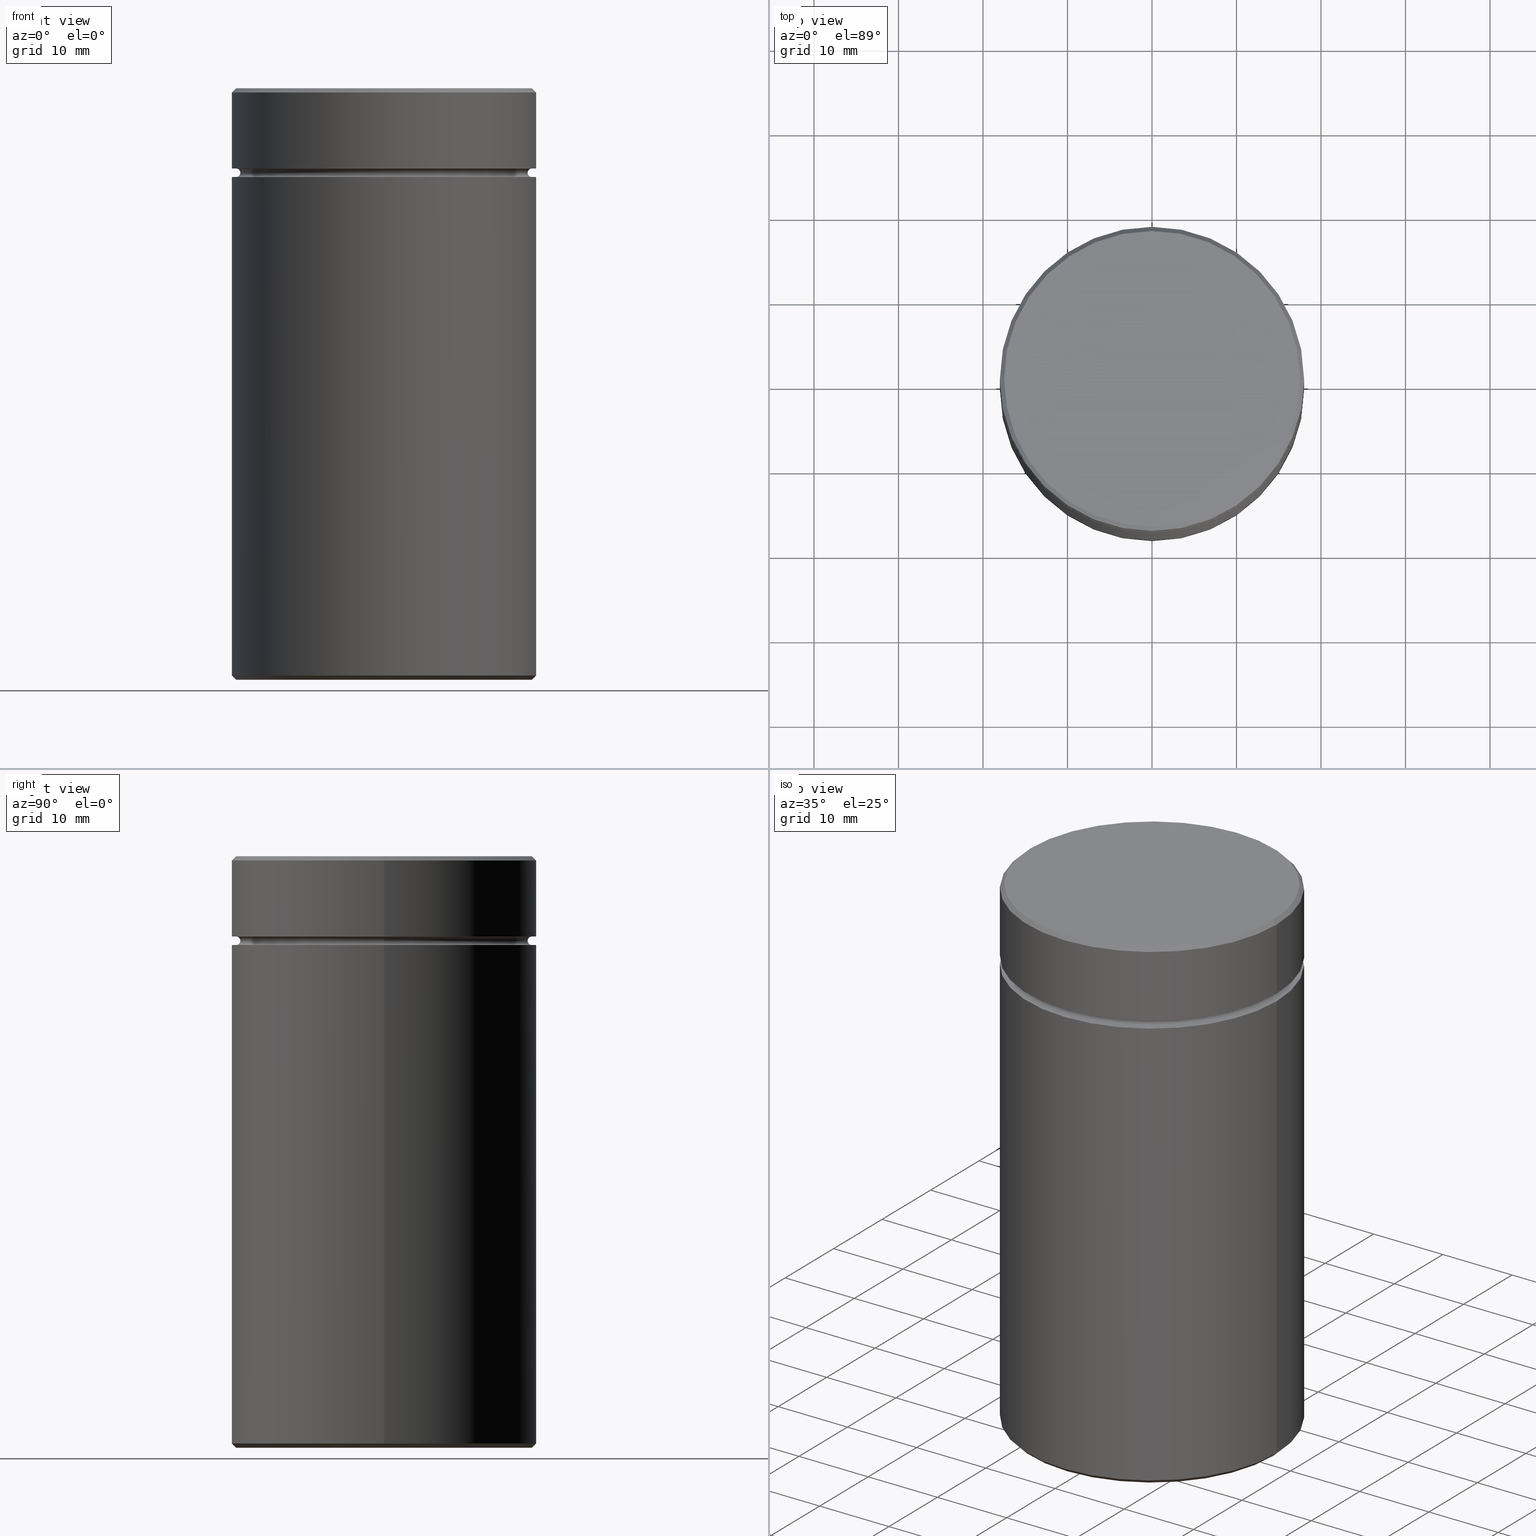
[diagram: canonical four-view strip — front | top / right | iso, engineering-drawing reading convention]
A machine part, canonical four-view strip (front | top / right | iso — engineering-drawing reading convention). The complete STEP part file that produces these views, byte-faithful:
ISO-10303-21;
HEADER;
FILE_DESCRIPTION (( 'STEP AP203' ),
    '1' );
FILE_NAME ('8669.STEP',
    '2024-01-08T12:16:21',
    ( '' ),
    ( '' ),
    'SwSTEP 2.0',
    'SolidWorks 2019',
    '' );
FILE_SCHEMA (( 'CONFIG_CONTROL_DESIGN' ));
ENDSEC;

DATA;
#1 = ORIENTED_EDGE ( 'NONE', *, *, #314, .T. ) ;
#2 = CARTESIAN_POINT ( 'NONE',  ( 17.49999999999999645, 0.000000000000000000, -10.50000000000000178 ) ) ;
#3 = AXIS2_PLACEMENT_3D ( 'NONE', #369, #31, #361 ) ;
#4 = DIRECTION ( 'NONE',  ( -1.000000000000000000, 0.000000000000000000, 0.000000000000000000 ) ) ;
#5 = AXIS2_PLACEMENT_3D ( 'NONE', #87, #166, #514 ) ;
#6 = LINE ( 'NONE', #84, #490 ) ;
#7 = LOCAL_TIME ( 13, 16, 21.00000000000000000, #8 ) ;
#8 = COORDINATED_UNIVERSAL_TIME_OFFSET ( 1, 0, .AHEAD. ) ;
#9 = CC_DESIGN_PERSON_AND_ORGANIZATION_ASSIGNMENT ( #193, #337, ( #241 ) ) ;
#10 = ORIENTED_EDGE ( 'NONE', *, *, #259, .T. ) ;
#11 = AXIS2_PLACEMENT_3D ( 'NONE', #305, #148, #180 ) ;
#12 = CARTESIAN_POINT ( 'NONE',  ( -18.00000000000000000, 2.204364238465235428E-15, -0.5000000000000177636 ) ) ;
#13 = DIRECTION ( 'NONE',  ( 0.000000000000000000, 0.000000000000000000, -1.000000000000000000 ) ) ;
#14 = EDGE_LOOP ( 'NONE', ( #394, #536, #189, #128 ) ) ;
#15 = CIRCLE ( 'NONE', #352, 18.00000000000000000 ) ;
#16 = CARTESIAN_POINT ( 'NONE',  ( 12.00000000000000178, 1.469576158976824144E-15, -24.00000000000000711 ) ) ;
#17 = CARTESIAN_POINT ( 'NONE',  ( -18.00000000000000000, 2.204364238465235428E-15, -10.50000000000000000 ) ) ;
#18 = VERTEX_POINT ( 'NONE', #496 ) ;
#19 = DIRECTION ( 'NONE',  ( 1.000000000000000000, 0.000000000000000000, 0.000000000000000000 ) ) ;
#20 = AXIS2_PLACEMENT_3D ( 'NONE', #80, #246, #157 ) ;
#21 = AXIS2_PLACEMENT_3D ( 'NONE', #46, #102, #400 ) ;
#22 = EDGE_CURVE ( 'NONE', #541, #476, #62, .T. ) ;
#23 = CARTESIAN_POINT ( 'NONE',  ( -12.00000000000000178, 0.000000000000000000, -70.00000000000000000 ) ) ;
#24 = FACE_OUTER_BOUND ( 'NONE', #179, .T. ) ;
#25 = ORIENTED_EDGE ( 'NONE', *, *, #388, .T. ) ;
#26 = ORIENTED_EDGE ( 'NONE', *, *, #227, .F. ) ;
#27 = PERSON_AND_ORGANIZATION_ROLE ( 'classification_officer' ) ;
#28 = APPROVAL_ROLE ( '' ) ;
#29 = EDGE_LOOP ( 'NONE', ( #529, #316, #45, #167 ) ) ;
#30 = VECTOR ( 'NONE', #158, 1000.000000000000000 ) ;
#31 = DIRECTION ( 'NONE',  ( 0.000000000000000000, -0.000000000000000000, 1.000000000000000000 ) ) ;
#32 = PERSON_AND_ORGANIZATION ( #402, #146 ) ;
#33 = APPLICATION_PROTOCOL_DEFINITION ( 'international standard', 'config_control_design', 1994, #313 ) ;
#34 = CARTESIAN_POINT ( 'NONE',  ( 0.000000000000000000, 0.000000000000000000, 0.000000000000000000 ) ) ;
#35 = CONICAL_SURFACE ( 'NONE', #509, 18.00000000000000000, 0.7853981633974587151 ) ;
#36 = DIRECTION ( 'NONE',  ( 0.000000000000000000, 0.000000000000000000, -1.000000000000000000 ) ) ;
#37 = CARTESIAN_POINT ( 'NONE',  ( 0.000000000000000000, 0.000000000000000000, -9.500000000000000000 ) ) ;
#38 = DIRECTION ( 'NONE',  ( -0.000000000000000000, -0.000000000000000000, -1.000000000000000000 ) ) ;
#39 = CIRCLE ( 'NONE', #181, 12.00000000000000178 ) ;
#40 = DIRECTION ( 'NONE',  ( -0.000000000000000000, -0.000000000000000000, 1.000000000000000000 ) ) ;
#41 = ADVANCED_FACE ( 'NONE', ( #342 ), #459, .F. ) ;
#42 = CARTESIAN_POINT ( 'NONE',  ( 0.000000000000000000, 0.000000000000000000, -9.500000000000000000 ) ) ;
#43 = PRODUCT ( '8669', '8669', '', ( #120 ) ) ;
#44 = CARTESIAN_POINT ( 'NONE',  ( -17.49999999999999645, 0.000000000000000000, -9.499999999999998224 ) ) ;
#45 = ORIENTED_EDGE ( 'NONE', *, *, #407, .T. ) ;
#46 = CARTESIAN_POINT ( 'NONE',  ( -17.49999999999999645, 0.000000000000000000, -9.999999999999998224 ) ) ;
#47 = FACE_OUTER_BOUND ( 'NONE', #14, .T. ) ;
#48 = CARTESIAN_POINT ( 'NONE',  ( 0.000000000000000000, 0.000000000000000000, 0.000000000000000000 ) ) ;
#49 = EDGE_LOOP ( 'NONE', ( #324, #404, #240, #439 ) ) ;
#50 = DIRECTION ( 'NONE',  ( -0.000000000000000000, -0.000000000000000000, 1.000000000000000000 ) ) ;
#51 = VECTOR ( 'NONE', #285, 1000.000000000000000 ) ;
#52 = CARTESIAN_POINT ( 'NONE',  ( 0.000000000000000000, 0.000000000000000000, -0.5000000000000177636 ) ) ;
#53 = CONICAL_SURFACE ( 'NONE', #486, 18.00000000000000000, 0.7853981633974587151 ) ;
#54 = SECURITY_CLASSIFICATION ( '', '', #505 ) ;
#55 = ORIENTED_EDGE ( 'NONE', *, *, #138, .T. ) ;
#56 = EDGE_LOOP ( 'NONE', ( #435, #273, #495, #145 ) ) ;
#57 = ADVANCED_FACE ( 'NONE', ( #355 ), #315, .F. ) ;
#58 = CIRCLE ( 'NONE', #460, 17.49999999999999645 ) ;
#59 = DIRECTION ( 'NONE',  ( 1.000000000000000000, 0.000000000000000000, 0.000000000000000000 ) ) ;
#60 = DIRECTION ( 'NONE',  ( -0.000000000000000000, -0.000000000000000000, 1.000000000000000000 ) ) ;
#61 = EDGE_CURVE ( 'NONE', #233, #270, #265, .T. ) ;
#62 = LINE ( 'NONE', #105, #569 ) ;
#63 = CIRCLE ( 'NONE', #473, 12.00000000000000178 ) ;
#64 = AXIS2_PLACEMENT_3D ( 'NONE', #239, #284, #418 ) ;
#65 = ORIENTED_EDGE ( 'NONE', *, *, #269, .T. ) ;
#66 = CC_DESIGN_PERSON_AND_ORGANIZATION_ASSIGNMENT ( #487, #184, ( #544 ) ) ;
#67 = ORIENTED_EDGE ( 'NONE', *, *, #314, .F. ) ;
#68 = ORIENTED_EDGE ( 'NONE', *, *, #457, .F. ) ;
#69 = CARTESIAN_POINT ( 'NONE',  ( 0.000000000000000000, 0.000000000000000000, -24.00000000000000711 ) ) ;
#70 = PERSON_AND_ORGANIZATION_ROLE ( 'design_owner' ) ;
#71 = DIRECTION ( 'NONE',  ( -0.000000000000000000, -0.000000000000000000, 1.000000000000000000 ) ) ;
#72 = FACE_BOUND ( 'NONE', #137, .T. ) ;
#73 = CALENDAR_DATE ( 2024, 8, 1 ) ;
#74 = EDGE_CURVE ( 'NONE', #229, #442, #539, .T. ) ;
#75 = TOROIDAL_SURFACE ( 'NONE', #535, 17.49999999999999645, 0.5000000000000000000 ) ;
#76 = DIRECTION ( 'NONE',  ( -1.000000000000000000, 0.000000000000000000, 0.000000000000000000 ) ) ;
#77 = FACE_OUTER_BOUND ( 'NONE', #357, .T. ) ;
#78 = EDGE_LOOP ( 'NONE', ( #456, #155, #142, #188 ) ) ;
#79 = CC_DESIGN_PERSON_AND_ORGANIZATION_ASSIGNMENT ( #278, #27, ( #54 ) ) ;
#80 = CARTESIAN_POINT ( 'NONE',  ( 0.000000000000000000, 0.000000000000000000, 0.000000000000000000 ) ) ;
#81 = ADVANCED_FACE ( 'NONE', ( #47 ), #35, .T. ) ;
#82 = CYLINDRICAL_SURFACE ( 'NONE', #201, 12.00000000000000178 ) ;
#83 = AXIS2_PLACEMENT_3D ( 'NONE', #443, #275, #312 ) ;
#84 = CARTESIAN_POINT ( 'NONE',  ( -18.00000000000000000, 2.204364238465235428E-15, 0.000000000000000000 ) ) ;
#85 = DIRECTION ( 'NONE',  ( -0.000000000000000000, -0.000000000000000000, 1.000000000000000000 ) ) ;
#86 = DIRECTION ( 'NONE',  ( -1.224646799147353207E-16, 1.000000000000000000, 0.000000000000000000 ) ) ;
#87 = CARTESIAN_POINT ( 'NONE',  ( 0.000000000000000000, 0.000000000000000000, -10.50000000000000178 ) ) ;
#88 = APPLICATION_CONTEXT ( 'configuration controlled 3d designs of mechanical parts and assemblies' ) ;
#89 = ORIENTED_EDGE ( 'NONE', *, *, #61, .T. ) ;
#90 = DIRECTION ( 'NONE',  ( 1.224646799147353207E-16, 1.000000000000000000, 0.000000000000000000 ) ) ;
#91 = AXIS2_PLACEMENT_3D ( 'NONE', #434, #13, #127 ) ;
#92 = TOROIDAL_SURFACE ( 'NONE', #131, 17.49999999999999645, 0.5000000000000000000 ) ;
#93 = ORIENTED_EDGE ( 'NONE', *, *, #547, .F. ) ;
#94 = EDGE_LOOP ( 'NONE', ( #372, #501, #497, #503 ) ) ;
#95 = VERTEX_POINT ( 'NONE', #429 ) ;
#96 = VERTEX_POINT ( 'NONE', #2 ) ;
#97 = ADVANCED_FACE ( 'NONE', ( #238 ), #430, .F. ) ;
#98 = EDGE_CURVE ( 'NONE', #442, #508, #564, .T. ) ;
#99 = CIRCLE ( 'NONE', #319, 18.00000000000000000 ) ;
#100 = AXIS2_PLACEMENT_3D ( 'NONE', #123, #568, #461 ) ;
#101 = FACE_OUTER_BOUND ( 'NONE', #219, .T. ) ;
#102 = DIRECTION ( 'NONE',  ( -0.000000000000000000, -1.000000000000000000, -0.000000000000000000 ) ) ;
#103 = EDGE_CURVE ( 'NONE', #442, #229, #170, .T. ) ;
#104 = PLANE ( 'NONE',  #387 ) ;
#105 = CARTESIAN_POINT ( 'NONE',  ( 12.00000000000000178, 1.469576158976824144E-15, -24.00000000000000711 ) ) ;
#106 = VERTEX_POINT ( 'NONE', #17 ) ;
#107 = AXIS2_PLACEMENT_3D ( 'NONE', #521, #297, #291 ) ;
#108 = LOCAL_TIME ( 13, 16, 21.00000000000000000, #362 ) ;
#109 = APPROVAL_STATUS ( 'not_yet_approved' ) ;
#110 = CARTESIAN_POINT ( 'NONE',  ( 0.000000000000000000, 0.000000000000000000, -69.50000000000001421 ) ) ;
#111 = EDGE_CURVE ( 'NONE', #351, #384, #244, .T. ) ;
#112 = FACE_OUTER_BOUND ( 'NONE', #49, .T. ) ;
#113 = DIRECTION ( 'NONE',  ( -0.000000000000000000, -0.000000000000000000, 1.000000000000000000 ) ) ;
#114 = CARTESIAN_POINT ( 'NONE',  ( -12.00000000000000178, 0.000000000000000000, -24.00000000000000711 ) ) ;
#115 = EDGE_CURVE ( 'NONE', #175, #18, #253, .T. ) ;
#116 = CARTESIAN_POINT ( 'NONE',  ( 0.000000000000000000, 0.000000000000000000, -9.999999999999998224 ) ) ;
#117 = DIRECTION ( 'NONE',  ( 1.000000000000000000, 0.000000000000000000, 0.000000000000000000 ) ) ;
#118 = DIRECTION ( 'NONE',  ( -0.000000000000000000, -0.000000000000000000, 1.000000000000000000 ) ) ;
#119 = CYLINDRICAL_SURFACE ( 'NONE', #107, 18.00000000000000000 ) ;
#120 = MECHANICAL_CONTEXT ( 'NONE', #313, 'mechanical' ) ;
#121 = VERTEX_POINT ( 'NONE', #467 ) ;
#122 = AXIS2_PLACEMENT_3D ( 'NONE', #220, #493, #448 ) ;
#123 = CARTESIAN_POINT ( 'NONE',  ( 0.000000000000000000, 0.000000000000000000, 0.000000000000000000 ) ) ;
#124 = ORIENTED_EDGE ( 'NONE', *, *, #527, .T. ) ;
#125 = AXIS2_PLACEMENT_3D ( 'NONE', #409, #416, #161 ) ;
#126 = ORIENTED_EDGE ( 'NONE', *, *, #115, .T. ) ;
#127 = DIRECTION ( 'NONE',  ( -1.000000000000000000, 0.000000000000000000, 0.000000000000000000 ) ) ;
#128 = ORIENTED_EDGE ( 'NONE', *, *, #259, .F. ) ;
#129 = DIRECTION ( 'NONE',  ( -0.000000000000000000, -0.000000000000000000, 1.000000000000000000 ) ) ;
#130 = DIRECTION ( 'NONE',  ( -0.7071067811865425767, 0.000000000000000000, -0.7071067811865525687 ) ) ;
#131 = AXIS2_PLACEMENT_3D ( 'NONE', #398, #71, #366 ) ;
#132 = EDGE_LOOP ( 'NONE', ( #498, #303, #359, #458 ) ) ;
#133 = ORIENTED_EDGE ( 'NONE', *, *, #463, .T. ) ;
#134 = VERTEX_POINT ( 'NONE', #373 ) ;
#135 = AXIS2_PLACEMENT_3D ( 'NONE', #420, #516, #117 ) ;
#136 = EDGE_CURVE ( 'NONE', #391, #134, #15, .T. ) ;
#137 = EDGE_LOOP ( 'NONE', ( #321, #25 ) ) ;
#138 = EDGE_CURVE ( 'NONE', #106, #18, #99, .T. ) ;
#139 = EDGE_LOOP ( 'NONE', ( #282, #55 ) ) ;
#140 = ORIENTED_EDGE ( 'NONE', *, *, #217, .F. ) ;
#141 = PERSON_AND_ORGANIZATION ( #402, #146 ) ;
#142 = ORIENTED_EDGE ( 'NONE', *, *, #250, .T. ) ;
#143 = CARTESIAN_POINT ( 'NONE',  ( 0.000000000000000000, 0.000000000000000000, -10.00000000000000178 ) ) ;
#144 = LOCAL_TIME ( 13, 16, 21.00000000000000000, #555 ) ;
#145 = ORIENTED_EDGE ( 'NONE', *, *, #431, .T. ) ;
#146 = ORGANIZATION ( 'NEUR�EN�', 'NEUR�EN�', '' ) ;
#147 = EDGE_CURVE ( 'NONE', #270, #233, #164, .T. ) ;
#148 = DIRECTION ( 'NONE',  ( 0.000000000000000000, 0.000000000000000000, -1.000000000000000000 ) ) ;
#149 = CARTESIAN_POINT ( 'NONE',  ( 0.000000000000000000, 0.000000000000000000, -9.999999999999998224 ) ) ;
#150 = ORIENTED_EDGE ( 'NONE', *, *, #22, .T. ) ;
#151 = DIRECTION ( 'NONE',  ( 0.7071067811865549002, 0.000000000000000000, 0.7071067811865401342 ) ) ;
#152 = FACE_OUTER_BOUND ( 'NONE', #534, .T. ) ;
#153 = ADVANCED_FACE ( 'NONE', ( #101 ), #104, .T. ) ;
#154 = CARTESIAN_POINT ( 'NONE',  ( 0.000000000000000000, 0.000000000000000000, -10.50000000000000178 ) ) ;
#155 = ORIENTED_EDGE ( 'NONE', *, *, #61, .F. ) ;
#156 = AXIS2_PLACEMENT_3D ( 'NONE', #218, #86, #304 ) ;
#157 = DIRECTION ( 'NONE',  ( -1.000000000000000000, 0.000000000000000000, 0.000000000000000000 ) ) ;
#158 = DIRECTION ( 'NONE',  ( -0.000000000000000000, -0.000000000000000000, 1.000000000000000000 ) ) ;
#159 = VERTEX_POINT ( 'NONE', #23 ) ;
#160 = CARTESIAN_POINT ( 'NONE',  ( 0.000000000000000000, 0.000000000000000000, -9.499999999999998224 ) ) ;
#161 = DIRECTION ( 'NONE',  ( -1.000000000000000000, 0.000000000000000000, 0.000000000000000000 ) ) ;
#162 = ORIENTED_EDGE ( 'NONE', *, *, #547, .T. ) ;
#163 = ORIENTED_EDGE ( 'NONE', *, *, #368, .F. ) ;
#164 = CIRCLE ( 'NONE', #83, 16.99999999999999645 ) ;
#165 = EDGE_CURVE ( 'NONE', #159, #476, #63, .T. ) ;
#166 = DIRECTION ( 'NONE',  ( 0.000000000000000000, 0.000000000000000000, -1.000000000000000000 ) ) ;
#167 = ORIENTED_EDGE ( 'NONE', *, *, #165, .T. ) ;
#168 = MANIFOLD_SOLID_BREP ( 'Zaoblit1', #447 ) ;
#169 = FACE_OUTER_BOUND ( 'NONE', #78, .T. ) ;
#170 = CIRCLE ( 'NONE', #341, 17.49999999999998934 ) ;
#171 = CARTESIAN_POINT ( 'NONE',  ( 16.99999999999999645, 0.000000000000000000, -10.00000000000000178 ) ) ;
#172 = EDGE_CURVE ( 'NONE', #175, #183, #221, .T. ) ;
#173 = EDGE_LOOP ( 'NONE', ( #124, #162 ) ) ;
#174 = AXIS2_PLACEMENT_3D ( 'NONE', #293, #255, #428 ) ;
#175 = VERTEX_POINT ( 'NONE', #374 ) ;
#176 = DIRECTION ( 'NONE',  ( 0.000000000000000000, 0.000000000000000000, -1.000000000000000000 ) ) ;
#177 = ORIENTED_EDGE ( 'NONE', *, *, #74, .F. ) ;
#178 = CARTESIAN_POINT ( 'NONE',  ( 0.000000000000000000, 0.000000000000000000, -69.50000000000001421 ) ) ;
#179 = EDGE_LOOP ( 'NONE', ( #537, #506, #276, #552 ) ) ;
#180 = DIRECTION ( 'NONE',  ( -1.000000000000000000, 0.000000000000000000, 0.000000000000000000 ) ) ;
#181 = AXIS2_PLACEMENT_3D ( 'NONE', #464, #286, #423 ) ;
#182 = CARTESIAN_POINT ( 'NONE',  ( 0.000000000000000000, 0.000000000000000000, 0.000000000000000000 ) ) ;
#183 = VERTEX_POINT ( 'NONE', #277 ) ;
#184 = PERSON_AND_ORGANIZATION_ROLE ( 'creator' ) ;
#185 = APPROVAL_ROLE ( '' ) ;
#186 = DATE_AND_TIME ( #73, #108 ) ;
#187 = PERSON_AND_ORGANIZATION ( #402, #146 ) ;
#188 = ORIENTED_EDGE ( 'NONE', *, *, #388, .F. ) ;
#189 = ORIENTED_EDGE ( 'NONE', *, *, #339, .T. ) ;
#190 = DIRECTION ( 'NONE',  ( -1.000000000000000000, 0.000000000000000000, 0.000000000000000000 ) ) ;
#191 = ADVANCED_FACE ( 'NONE', ( #72, #471 ), #195, .T. ) ;
#192 = LINE ( 'NONE', #518, #565 ) ;
#193 = PERSON_AND_ORGANIZATION ( #402, #146 ) ;
#194 = CARTESIAN_POINT ( 'NONE',  ( 0.000000000000000000, 0.000000000000000000, -24.00000000000000711 ) ) ;
#195 = PLANE ( 'NONE',  #3 ) ;
#196 = DATE_AND_TIME ( #356, #301 ) ;
#197 = UNCERTAINTY_MEASURE_WITH_UNIT (LENGTH_MEASURE( 1.000000000000000082E-05 ), #494, 'distance_accuracy_value', 'NONE');
#198 = CALENDAR_DATE ( 2024, 8, 1 ) ;
#199 = ADVANCED_FACE ( 'NONE', ( #326, #243 ), #364, .T. ) ;
#200 = CARTESIAN_POINT ( 'NONE',  ( 0.000000000000000000, 0.000000000000000000, 0.000000000000000000 ) ) ;
#201 = AXIS2_PLACEMENT_3D ( 'NONE', #519, #249, #4 ) ;
#202 = DATE_AND_TIME ( #545, #144 ) ;
#203 = DIRECTION ( 'NONE',  ( 1.000000000000000000, 0.000000000000000000, 0.000000000000000000 ) ) ;
#204 = ORIENTED_EDGE ( 'NONE', *, *, #502, .T. ) ;
#205 = DIRECTION ( 'NONE',  ( -1.000000000000000000, 0.000000000000000000, -0.000000000000000000 ) ) ;
#206 = CALENDAR_DATE ( 2024, 8, 1 ) ;
#207 = DIRECTION ( 'NONE',  ( 0.000000000000000000, 0.000000000000000000, -1.000000000000000000 ) ) ;
#208 = DIRECTION ( 'NONE',  ( -0.000000000000000000, -0.000000000000000000, 1.000000000000000000 ) ) ;
#209 = EDGE_LOOP ( 'NONE', ( #177, #65, #438, #347 ) ) ;
#210 = ADVANCED_FACE ( 'NONE', ( #520 ), #512, .T. ) ;
#211 = AXIS2_PLACEMENT_3D ( 'NONE', #396, #118, #530 ) ;
#212 = FACE_BOUND ( 'NONE', #549, .T. ) ;
#213 = CYLINDRICAL_SURFACE ( 'NONE', #397, 18.00000000000000000 ) ;
#214 = CYLINDRICAL_SURFACE ( 'NONE', #100, 18.00000000000000000 ) ;
#215 = DIRECTION ( 'NONE',  ( 1.000000000000000000, 0.000000000000000000, 0.000000000000000000 ) ) ;
#216 = AXIS2_PLACEMENT_3D ( 'NONE', #160, #336, #190 ) ;
#217 = EDGE_CURVE ( 'NONE', #541, #257, #370, .T. ) ;
#218 = CARTESIAN_POINT ( 'NONE',  ( 17.49999999999999645, 2.143131898507867854E-15, -9.999999999999998224 ) ) ;
#219 = EDGE_LOOP ( 'NONE', ( #133, #298 ) ) ;
#220 = CARTESIAN_POINT ( 'NONE',  ( 0.000000000000000000, 0.000000000000000000, -24.00000000000000711 ) ) ;
#221 = CIRCLE ( 'NONE', #489, 18.00000000000000000 ) ;
#222 = CIRCLE ( 'NONE', #21, 0.5000000000000004441 ) ;
#223 = CARTESIAN_POINT ( 'NONE',  ( -12.00000000000000178, 0.000000000000000000, -24.00000000000000711 ) ) ;
#224 = CARTESIAN_POINT ( 'NONE',  ( 0.000000000000000000, 0.000000000000000000, -69.50000000000001421 ) ) ;
#225 = EDGE_CURVE ( 'NONE', #384, #351, #327, .T. ) ;
#226 = CARTESIAN_POINT ( 'NONE',  ( 17.49999999999999645, 0.000000000000000000, -10.00000000000000178 ) ) ;
#227 = EDGE_CURVE ( 'NONE', #233, #95, #395, .T. ) ;
#228 = AXIS2_PLACEMENT_3D ( 'NONE', #116, #421, #345 ) ;
#229 = VERTEX_POINT ( 'NONE', #258 ) ;
#230 = AXIS2_PLACEMENT_3D ( 'NONE', #52, #207, #251 ) ;
#231 = PERSON_AND_ORGANIZATION_ROLE ( 'design_supplier' ) ;
#232 = EDGE_CURVE ( 'NONE', #508, #484, #485, .T. ) ;
#233 = VERTEX_POINT ( 'NONE', #171 ) ;
#234 = FACE_OUTER_BOUND ( 'NONE', #56, .T. ) ;
#235 = APPROVAL_DATE_TIME ( #196, #317 ) ;
#236 = AXIS2_PLACEMENT_3D ( 'NONE', #226, #254, #176 ) ;
#237 = CC_DESIGN_APPROVAL ( #317, ( #54 ) ) ;
#238 = FACE_OUTER_BOUND ( 'NONE', #132, .T. ) ;
#239 = CARTESIAN_POINT ( 'NONE',  ( 0.000000000000000000, 0.000000000000000000, -0.5000000000000177636 ) ) ;
#240 = ORIENTED_EDGE ( 'NONE', *, *, #98, .T. ) ;
#241 = PRODUCT_DEFINITION ( 'NEZN�M�', '', #544, #455 ) ;
#242 = DIRECTION ( 'NONE',  ( -1.000000000000000000, 0.000000000000000000, 0.000000000000000000 ) ) ;
#243 = FACE_OUTER_BOUND ( 'NONE', #307, .T. ) ;
#244 = CIRCLE ( 'NONE', #11, 17.50000000000000000 ) ;
#245 = DIRECTION ( 'NONE',  ( 1.000000000000000000, 0.000000000000000000, 0.000000000000000000 ) ) ;
#246 = DIRECTION ( 'NONE',  ( 0.000000000000000000, 0.000000000000000000, -1.000000000000000000 ) ) ;
#247 =( GEOMETRIC_REPRESENTATION_CONTEXT ( 3 ) GLOBAL_UNCERTAINTY_ASSIGNED_CONTEXT ( ( #197 ) ) GLOBAL_UNIT_ASSIGNED_CONTEXT ( ( #494, #444, #412 ) ) REPRESENTATION_CONTEXT ( 'NONE', 'WORKASPACE' ) );
#248 = LINE ( 'NONE', #510, #320 ) ;
#249 = DIRECTION ( 'NONE',  ( -0.000000000000000000, -0.000000000000000000, -1.000000000000000000 ) ) ;
#250 = EDGE_CURVE ( 'NONE', #233, #96, #360, .T. ) ;
#251 = DIRECTION ( 'NONE',  ( 1.000000000000000000, 0.000000000000000000, 0.000000000000000000 ) ) ;
#252 = LINE ( 'NONE', #114, #382 ) ;
#253 = LINE ( 'NONE', #413, #51 ) ;
#254 = DIRECTION ( 'NONE',  ( 0.000000000000000000, -1.000000000000000000, 0.000000000000000000 ) ) ;
#255 = DIRECTION ( 'NONE',  ( -0.000000000000000000, -0.000000000000000000, 1.000000000000000000 ) ) ;
#256 = DATE_TIME_ROLE ( 'creation_date' ) ;
#257 = VERTEX_POINT ( 'NONE', #223 ) ;
#258 = CARTESIAN_POINT ( 'NONE',  ( 17.49999999999998934, 2.173748068486550852E-15, 0.000000000000000000 ) ) ;
#259 = EDGE_CURVE ( 'NONE', #183, #175, #267, .T. ) ;
#260 = AXIS2_PLACEMENT_3D ( 'NONE', #335, #290, #406 ) ;
#261 = VECTOR ( 'NONE', #151, 1000.000000000000000 ) ;
#262 = ORIENTED_EDGE ( 'NONE', *, *, #559, .T. ) ;
#263 = CARTESIAN_POINT ( 'NONE',  ( 0.000000000000000000, 0.000000000000000000, 0.000000000000000000 ) ) ;
#264 = ORIENTED_EDGE ( 'NONE', *, *, #111, .T. ) ;
#265 = CIRCLE ( 'NONE', #211, 16.99999999999999645 ) ;
#266 = ORIENTED_EDGE ( 'NONE', *, *, #165, .F. ) ;
#267 = CIRCLE ( 'NONE', #346, 18.00000000000000000 ) ;
#268 = FACE_OUTER_BOUND ( 'NONE', #344, .T. ) ;
#269 = EDGE_CURVE ( 'NONE', #229, #484, #248, .T. ) ;
#270 = VERTEX_POINT ( 'NONE', #566 ) ;
#271 = CIRCLE ( 'NONE', #174, 17.49999999999999645 ) ;
#272 = PRODUCT_DEFINITION_SHAPE ( 'NONE', 'NONE',  #241 ) ;
#273 = ORIENTED_EDGE ( 'NONE', *, *, #353, .T. ) ;
#274 = APPROVAL ( #445, 'NEUR�EN�' ) ;
#275 = DIRECTION ( 'NONE',  ( -0.000000000000000000, -0.000000000000000000, 1.000000000000000000 ) ) ;
#276 = ORIENTED_EDGE ( 'NONE', *, *, #172, .F. ) ;
#277 = CARTESIAN_POINT ( 'NONE',  ( -18.00000000000000000, 2.204364238465235428E-15, -69.50000000000001421 ) ) ;
#278 = PERSON_AND_ORGANIZATION ( #402, #146 ) ;
#279 = AXIS2_PLACEMENT_3D ( 'NONE', #200, #113, #415 ) ;
#280 = PERSON_AND_ORGANIZATION ( #402, #146 ) ;
#281 = VECTOR ( 'NONE', #50, 1000.000000000000000 ) ;
#282 = ORIENTED_EDGE ( 'NONE', *, *, #457, .T. ) ;
#283 = CC_DESIGN_APPROVAL ( #296, ( #241 ) ) ;
#284 = DIRECTION ( 'NONE',  ( 0.000000000000000000, 0.000000000000000000, -1.000000000000000000 ) ) ;
#285 = DIRECTION ( 'NONE',  ( -0.000000000000000000, -0.000000000000000000, 1.000000000000000000 ) ) ;
#286 = DIRECTION ( 'NONE',  ( 0.000000000000000000, 0.000000000000000000, -1.000000000000000000 ) ) ;
#287 = CARTESIAN_POINT ( 'NONE',  ( 18.00000000000000000, 0.000000000000000000, -0.5000000000000177636 ) ) ;
#288 = DIRECTION ( 'NONE',  ( -0.7071067811865549002, 8.659560562355022838E-17, 0.7071067811865401342 ) ) ;
#289 = CARTESIAN_POINT ( 'NONE',  ( 0.000000000000000000, 0.000000000000000000, -10.50000000000000000 ) ) ;
#290 = DIRECTION ( 'NONE',  ( 0.000000000000000000, 0.000000000000000000, -1.000000000000000000 ) ) ;
#291 = DIRECTION ( 'NONE',  ( 1.000000000000000000, 0.000000000000000000, 0.000000000000000000 ) ) ;
#292 = AXIS2_PLACEMENT_3D ( 'NONE', #37, #379, #203 ) ;
#293 = CARTESIAN_POINT ( 'NONE',  ( 0.000000000000000000, 0.000000000000000000, -9.499999999999998224 ) ) ;
#294 = APPROVAL_PERSON_ORGANIZATION ( #280, #317, #546 ) ;
#295 = FACE_OUTER_BOUND ( 'NONE', #533, .T. ) ;
#296 = APPROVAL ( #408, 'NEUR�EN�' ) ;
#297 = DIRECTION ( 'NONE',  ( -0.000000000000000000, -0.000000000000000000, 1.000000000000000000 ) ) ;
#298 = ORIENTED_EDGE ( 'NONE', *, *, #217, .T. ) ;
#299 = ORIENTED_EDGE ( 'NONE', *, *, #138, .F. ) ;
#300 = CIRCLE ( 'NONE', #292, 18.00000000000000000 ) ;
#301 = LOCAL_TIME ( 13, 16, 21.00000000000000000, #450 ) ;
#302 = APPROVAL_DATE_TIME ( #311, #274 ) ;
#303 = ORIENTED_EDGE ( 'NONE', *, *, #227, .T. ) ;
#304 = DIRECTION ( 'NONE',  ( -1.000000000000000000, -1.224646799147349509E-16, 0.000000000000000000 ) ) ;
#305 = CARTESIAN_POINT ( 'NONE',  ( 0.000000000000000000, 0.000000000000000000, -70.00000000000000000 ) ) ;
#306 = ADVANCED_FACE ( 'NONE', ( #112 ), #454, .T. ) ;
#307 = EDGE_LOOP ( 'NONE', ( #469, #340 ) ) ;
#308 = AXIS2_PLACEMENT_3D ( 'NONE', #557, #561, #465 ) ;
#309 = AXIS2_PLACEMENT_3D ( 'NONE', #289, #40, #470 ) ;
#310 = DIRECTION ( 'NONE',  ( 0.000000000000000000, 0.000000000000000000, -1.000000000000000000 ) ) ;
#311 = DATE_AND_TIME ( #198, #7 ) ;
#312 = DIRECTION ( 'NONE',  ( 1.000000000000000000, 0.000000000000000000, 0.000000000000000000 ) ) ;
#313 = APPLICATION_CONTEXT ( 'configuration controlled 3d designs of mechanical parts and assemblies' ) ;
#314 = EDGE_CURVE ( 'NONE', #476, #159, #39, .T. ) ;
#315 = TOROIDAL_SURFACE ( 'NONE', #437, 17.49999999999999645, 0.5000000000000000000 ) ;
#316 = ORIENTED_EDGE ( 'NONE', *, *, #463, .F. ) ;
#317 = APPROVAL ( #109, 'NEUR�EN�' ) ;
#318 = CARTESIAN_POINT ( 'NONE',  ( 0.000000000000000000, 18.00000000000000000, -70.00000000000000000 ) ) ;
#319 = AXIS2_PLACEMENT_3D ( 'NONE', #390, #343, #19 ) ;
#320 = VECTOR ( 'NONE', #515, 999.9999999999998863 ) ;
#321 = ORIENTED_EDGE ( 'NONE', *, *, #368, .T. ) ;
#322 = CC_DESIGN_PERSON_AND_ORGANIZATION_ASSIGNMENT ( #187, #70, ( #43 ) ) ;
#323 = DIRECTION ( 'NONE',  ( 0.000000000000000000, 0.000000000000000000, -1.000000000000000000 ) ) ;
#324 = ORIENTED_EDGE ( 'NONE', *, *, #269, .F. ) ;
#325 = DIRECTION ( 'NONE',  ( 0.000000000000000000, 0.000000000000000000, -1.000000000000000000 ) ) ;
#326 = FACE_BOUND ( 'NONE', #173, .T. ) ;
#327 = CIRCLE ( 'NONE', #91, 17.50000000000000000 ) ;
#328 = DIRECTION ( 'NONE',  ( 1.000000000000000000, 0.000000000000000000, 0.000000000000000000 ) ) ;
#329 = CC_DESIGN_APPROVAL ( #274, ( #544 ) ) ;
#330 = COORDINATED_UNIVERSAL_TIME_OFFSET ( 1, 0, .AHEAD. ) ;
#331 = DIRECTION ( 'NONE',  ( 0.000000000000000000, 0.000000000000000000, 1.000000000000000000 ) ) ;
#332 = ORIENTED_EDGE ( 'NONE', *, *, #147, .F. ) ;
#333 = EDGE_CURVE ( 'NONE', #384, #183, #192, .T. ) ;
#334 = PLANE ( 'NONE',  #135 ) ;
#335 = CARTESIAN_POINT ( 'NONE',  ( 0.000000000000000000, 0.000000000000000000, -24.00000000000000711 ) ) ;
#336 = DIRECTION ( 'NONE',  ( -0.000000000000000000, -0.000000000000000000, 1.000000000000000000 ) ) ;
#337 = PERSON_AND_ORGANIZATION_ROLE ( 'creator' ) ;
#338 = CIRCLE ( 'NONE', #64, 18.00000000000000000 ) ;
#339 = EDGE_CURVE ( 'NONE', #351, #175, #524, .T. ) ;
#340 = ORIENTED_EDGE ( 'NONE', *, *, #353, .F. ) ;
#341 = AXIS2_PLACEMENT_3D ( 'NONE', #263, #60, #215 ) ;
#342 = FACE_OUTER_BOUND ( 'NONE', #29, .T. ) ;
#343 = DIRECTION ( 'NONE',  ( -0.000000000000000000, -0.000000000000000000, 1.000000000000000000 ) ) ;
#344 = EDGE_LOOP ( 'NONE', ( #401, #551, #68, #365 ) ) ;
#345 = DIRECTION ( 'NONE',  ( -1.000000000000000000, 0.000000000000000000, 0.000000000000000000 ) ) ;
#346 = AXIS2_PLACEMENT_3D ( 'NONE', #178, #538, #488 ) ;
#347 = ORIENTED_EDGE ( 'NONE', *, *, #98, .F. ) ;
#348 = ADVANCED_FACE ( 'NONE', ( #234 ), #213, .T. ) ;
#349 = CARTESIAN_POINT ( 'NONE',  ( 0.000000000000000000, 0.000000000000000000, -70.00000000000000000 ) ) ;
#350 = ORIENTED_EDGE ( 'NONE', *, *, #103, .T. ) ;
#351 = VERTEX_POINT ( 'NONE', #480 ) ;
#352 = AXIS2_PLACEMENT_3D ( 'NONE', #42, #129, #59 ) ;
#353 = EDGE_CURVE ( 'NONE', #134, #391, #300, .T. ) ;
#354 = DIRECTION ( 'NONE',  ( -0.000000000000000000, -0.000000000000000000, 1.000000000000000000 ) ) ;
#355 = FACE_OUTER_BOUND ( 'NONE', #522, .T. ) ;
#356 = CALENDAR_DATE ( 2024, 8, 1 ) ;
#357 = EDGE_LOOP ( 'NONE', ( #453, #10, #126, #299 ) ) ;
#358 = APPLICATION_PROTOCOL_DEFINITION ( 'international standard', 'config_control_design', 1994, #88 ) ;
#359 = ORIENTED_EDGE ( 'NONE', *, *, #527, .F. ) ;
#360 = CIRCLE ( 'NONE', #236, 0.5000000000000004441 ) ;
#361 = DIRECTION ( 'NONE',  ( 1.000000000000000000, 0.000000000000000000, 0.000000000000000000 ) ) ;
#362 = COORDINATED_UNIVERSAL_TIME_OFFSET ( 1, 0, .AHEAD. ) ;
#363 = EDGE_CURVE ( 'NONE', #134, #508, #562, .T. ) ;
#364 = PLANE ( 'NONE',  #308 ) ;
#365 = ORIENTED_EDGE ( 'NONE', *, *, #115, .F. ) ;
#366 = DIRECTION ( 'NONE',  ( 1.000000000000000000, 0.000000000000000000, 0.000000000000000000 ) ) ;
#367 = DIRECTION ( 'NONE',  ( 1.000000000000000000, 0.000000000000000000, 0.000000000000000000 ) ) ;
#368 = EDGE_CURVE ( 'NONE', #96, #121, #58, .T. ) ;
#369 = CARTESIAN_POINT ( 'NONE',  ( 0.000000000000000000, 16.99999999999999645, -10.50000000000000178 ) ) ;
#370 = CIRCLE ( 'NONE', #260, 12.00000000000000178 ) ;
#371 = CIRCLE ( 'NONE', #5, 17.49999999999999645 ) ;
#372 = ORIENTED_EDGE ( 'NONE', *, *, #136, .T. ) ;
#373 = CARTESIAN_POINT ( 'NONE',  ( -18.00000000000000000, 2.204364238465235428E-15, -9.500000000000000000 ) ) ;
#374 = CARTESIAN_POINT ( 'NONE',  ( 18.00000000000000000, 0.000000000000000000, -69.50000000000001421 ) ) ;
#375 = CARTESIAN_POINT ( 'NONE',  ( -18.00000000000000000, 2.204364238465235428E-15, 0.000000000000000000 ) ) ;
#376 = ORIENTED_EDGE ( 'NONE', *, *, #74, .T. ) ;
#377 = ADVANCED_FACE ( 'NONE', ( #77 ), #119, .T. ) ;
#378 = FACE_OUTER_BOUND ( 'NONE', #94, .T. ) ;
#379 = DIRECTION ( 'NONE',  ( -0.000000000000000000, -0.000000000000000000, 1.000000000000000000 ) ) ;
#380 = PLANE ( 'NONE',  #424 ) ;
#381 = DIRECTION ( 'NONE',  ( 0.000000000000000000, 0.000000000000000000, -1.000000000000000000 ) ) ;
#382 = VECTOR ( 'NONE', #426, 1000.000000000000000 ) ;
#383 = DIRECTION ( 'NONE',  ( -1.000000000000000000, 1.224646799147349509E-16, 0.000000000000000000 ) ) ;
#384 = VERTEX_POINT ( 'NONE', #466 ) ;
#385 = EDGE_CURVE ( 'NONE', #183, #106, #6, .T. ) ;
#386 = CARTESIAN_POINT ( 'NONE',  ( 18.00000000000000000, 0.000000000000000000, 0.000000000000000000 ) ) ;
#387 = AXIS2_PLACEMENT_3D ( 'NONE', #69, #310, #449 ) ;
#388 = EDGE_CURVE ( 'NONE', #121, #96, #371, .T. ) ;
#389 = AXIS2_PLACEMENT_3D ( 'NONE', #34, #331, #472 ) ;
#390 = CARTESIAN_POINT ( 'NONE',  ( 0.000000000000000000, 0.000000000000000000, -10.50000000000000000 ) ) ;
#391 = VERTEX_POINT ( 'NONE', #532 ) ;
#392 = DIRECTION ( 'NONE',  ( -0.000000000000000000, -0.000000000000000000, 1.000000000000000000 ) ) ;
#393 = ORIENTED_EDGE ( 'NONE', *, *, #407, .F. ) ;
#394 = ORIENTED_EDGE ( 'NONE', *, *, #333, .F. ) ;
#395 = CIRCLE ( 'NONE', #156, 0.5000000000000004441 ) ;
#396 = CARTESIAN_POINT ( 'NONE',  ( 0.000000000000000000, 0.000000000000000000, -10.00000000000000178 ) ) ;
#397 = AXIS2_PLACEMENT_3D ( 'NONE', #48, #85, #367 ) ;
#398 = CARTESIAN_POINT ( 'NONE',  ( 0.000000000000000000, 0.000000000000000000, -10.00000000000000178 ) ) ;
#399 = SHAPE_DEFINITION_REPRESENTATION ( #272, #422 ) ;
#400 = DIRECTION ( 'NONE',  ( 0.000000000000000000, 0.000000000000000000, -1.000000000000000000 ) ) ;
#401 = ORIENTED_EDGE ( 'NONE', *, *, #172, .T. ) ;
#402 = PERSON ( 'NEUR�EN�', 'NEUR�EN�', 'NEUR�EN�', ('NEUR�EN�'), ('NEUR�EN�'), ('NEUR�EN�') ) ;
#403 = CYLINDRICAL_SURFACE ( 'NONE', #504, 18.00000000000000000 ) ;
#404 = ORIENTED_EDGE ( 'NONE', *, *, #103, .F. ) ;
#405 = CARTESIAN_POINT ( 'NONE',  ( -17.49999999999998934, 0.000000000000000000, 0.000000000000000000 ) ) ;
#406 = DIRECTION ( 'NONE',  ( -1.000000000000000000, 0.000000000000000000, 0.000000000000000000 ) ) ;
#407 = EDGE_CURVE ( 'NONE', #257, #159, #252, .T. ) ;
#408 = APPROVAL_STATUS ( 'not_yet_approved' ) ;
#409 = CARTESIAN_POINT ( 'NONE',  ( 0.000000000000000000, 0.000000000000000000, 0.000000000000000000 ) ) ;
#410 = CIRCLE ( 'NONE', #309, 18.00000000000000000 ) ;
#411 = DIRECTION ( 'NONE',  ( -0.000000000000000000, -0.000000000000000000, 1.000000000000000000 ) ) ;
#412 =( NAMED_UNIT ( * ) SI_UNIT ( $, .STERADIAN. ) SOLID_ANGLE_UNIT ( ) );
#413 = CARTESIAN_POINT ( 'NONE',  ( 18.00000000000000000, 0.000000000000000000, 0.000000000000000000 ) ) ;
#414 = DIRECTION ( 'NONE',  ( -0.000000000000000000, -0.000000000000000000, 1.000000000000000000 ) ) ;
#415 = DIRECTION ( 'NONE',  ( 1.000000000000000000, 0.000000000000000000, 0.000000000000000000 ) ) ;
#416 = DIRECTION ( 'NONE',  ( 0.000000000000000000, 0.000000000000000000, -1.000000000000000000 ) ) ;
#417 = DIRECTION ( 'NONE',  ( -1.000000000000000000, 0.000000000000000000, 0.000000000000000000 ) ) ;
#418 = DIRECTION ( 'NONE',  ( 1.000000000000000000, 0.000000000000000000, 0.000000000000000000 ) ) ;
#419 = DIRECTION ( 'NONE',  ( -0.000000000000000000, -0.000000000000000000, 1.000000000000000000 ) ) ;
#420 = CARTESIAN_POINT ( 'NONE',  ( 0.000000000000000000, 0.000000000000000000, 0.000000000000000000 ) ) ;
#421 = DIRECTION ( 'NONE',  ( 0.000000000000000000, 0.000000000000000000, -1.000000000000000000 ) ) ;
#422 = ADVANCED_BREP_SHAPE_REPRESENTATION ( '8669', ( #168, #389 ), #247 ) ;
#423 = DIRECTION ( 'NONE',  ( -1.000000000000000000, 0.000000000000000000, 0.000000000000000000 ) ) ;
#424 = AXIS2_PLACEMENT_3D ( 'NONE', #318, #36, #205 ) ;
#425 = VERTEX_POINT ( 'NONE', #44 ) ;
#426 = DIRECTION ( 'NONE',  ( -0.000000000000000000, -0.000000000000000000, -1.000000000000000000 ) ) ;
#427 = EDGE_LOOP ( 'NONE', ( #140, #150, #1, #393 ) ) ;
#428 = DIRECTION ( 'NONE',  ( -1.000000000000000000, 0.000000000000000000, 0.000000000000000000 ) ) ;
#429 = CARTESIAN_POINT ( 'NONE',  ( 17.49999999999999645, 2.143131898507867854E-15, -9.499999999999998224 ) ) ;
#430 = TOROIDAL_SURFACE ( 'NONE', #228, 17.49999999999999645, 0.5000000000000000000 ) ;
#431 = EDGE_CURVE ( 'NONE', #484, #508, #338, .T. ) ;
#432 = LINE ( 'NONE', #386, #281 ) ;
#433 = DIRECTION ( 'NONE',  ( 1.000000000000000000, 0.000000000000000000, 0.000000000000000000 ) ) ;
#434 = CARTESIAN_POINT ( 'NONE',  ( 0.000000000000000000, 0.000000000000000000, -70.00000000000000000 ) ) ;
#435 = ORIENTED_EDGE ( 'NONE', *, *, #363, .F. ) ;
#436 = ADVANCED_FACE ( 'NONE', ( #169 ), #92, .F. ) ;
#437 = AXIS2_PLACEMENT_3D ( 'NONE', #143, #414, #433 ) ;
#438 = ORIENTED_EDGE ( 'NONE', *, *, #232, .F. ) ;
#439 = ORIENTED_EDGE ( 'NONE', *, *, #431, .F. ) ;
#440 = CIRCLE ( 'NONE', #513, 0.5000000000000004441 ) ;
#441 = APPROVAL_PERSON_ORGANIZATION ( #141, #274, #185 ) ;
#442 = VERTEX_POINT ( 'NONE', #405 ) ;
#443 = CARTESIAN_POINT ( 'NONE',  ( 0.000000000000000000, 0.000000000000000000, -10.00000000000000178 ) ) ;
#444 =( NAMED_UNIT ( * ) PLANE_ANGLE_UNIT ( ) SI_UNIT ( $, .RADIAN. ) );
#445 = APPROVAL_STATUS ( 'not_yet_approved' ) ;
#446 = ADVANCED_FACE ( 'NONE', ( #378 ), #214, .T. ) ;
#447 = CLOSED_SHELL ( 'NONE', ( #97, #57, #567, #210, #492, #563, #446, #523, #481, #348, #199, #191, #377, #41, #153, #306, #81, #436, #479 ) ) ;
#448 = DIRECTION ( 'NONE',  ( -1.000000000000000000, 0.000000000000000000, 0.000000000000000000 ) ) ;
#449 = DIRECTION ( 'NONE',  ( -1.000000000000000000, 0.000000000000000000, -0.000000000000000000 ) ) ;
#450 = COORDINATED_UNIVERSAL_TIME_OFFSET ( 1, 0, .AHEAD. ) ;
#451 = DIRECTION ( 'NONE',  ( 1.000000000000000000, 0.000000000000000000, 0.000000000000000000 ) ) ;
#452 = ORIENTED_EDGE ( 'NONE', *, *, #250, .F. ) ;
#453 = ORIENTED_EDGE ( 'NONE', *, *, #385, .F. ) ;
#454 = CONICAL_SURFACE ( 'NONE', #125, 17.49999999999998934, 0.7853981633974412846 ) ;
#455 = DESIGN_CONTEXT ( 'detailed design', #88, 'design' ) ;
#456 = ORIENTED_EDGE ( 'NONE', *, *, #502, .F. ) ;
#457 = EDGE_CURVE ( 'NONE', #18, #106, #410, .T. ) ;
#458 = ORIENTED_EDGE ( 'NONE', *, *, #559, .F. ) ;
#459 = CYLINDRICAL_SURFACE ( 'NONE', #122, 12.00000000000000178 ) ;
#460 = AXIS2_PLACEMENT_3D ( 'NONE', #154, #517, #328 ) ;
#461 = DIRECTION ( 'NONE',  ( 1.000000000000000000, 0.000000000000000000, 0.000000000000000000 ) ) ;
#462 = DIRECTION ( 'NONE',  ( -1.000000000000000000, 0.000000000000000000, 0.000000000000000000 ) ) ;
#463 = EDGE_CURVE ( 'NONE', #257, #541, #543, .T. ) ;
#464 = CARTESIAN_POINT ( 'NONE',  ( 0.000000000000000000, 0.000000000000000000, -70.00000000000000000 ) ) ;
#465 = DIRECTION ( 'NONE',  ( -1.000000000000000000, 0.000000000000000000, -0.000000000000000000 ) ) ;
#466 = CARTESIAN_POINT ( 'NONE',  ( -17.50000000000000000, 2.173748068486551641E-15, -70.00000000000000000 ) ) ;
#467 = CARTESIAN_POINT ( 'NONE',  ( -17.49999999999999645, 2.143131898507867854E-15, -10.50000000000000178 ) ) ;
#468 = CC_DESIGN_DATE_AND_TIME_ASSIGNMENT ( #525, #256, ( #241 ) ) ;
#469 = ORIENTED_EDGE ( 'NONE', *, *, #136, .F. ) ;
#470 = DIRECTION ( 'NONE',  ( 1.000000000000000000, 0.000000000000000000, 0.000000000000000000 ) ) ;
#471 = FACE_OUTER_BOUND ( 'NONE', #139, .T. ) ;
#472 = DIRECTION ( 'NONE',  ( 1.000000000000000000, 0.000000000000000000, 0.000000000000000000 ) ) ;
#473 = AXIS2_PLACEMENT_3D ( 'NONE', #349, #323, #417 ) ;
#474 = FACE_OUTER_BOUND ( 'NONE', #427, .T. ) ;
#475 = APPROVAL_PERSON_ORGANIZATION ( #550, #296, #28 ) ;
#476 = VERTEX_POINT ( 'NONE', #526 ) ;
#477 = CARTESIAN_POINT ( 'NONE',  ( 0.000000000000000000, 0.000000000000000000, -69.50000000000001421 ) ) ;
#478 = CARTESIAN_POINT ( 'NONE',  ( 18.00000000000000000, 0.000000000000000000, -69.50000000000001421 ) ) ;
#479 = ADVANCED_FACE ( 'NONE', ( #560 ), #75, .F. ) ;
#480 = CARTESIAN_POINT ( 'NONE',  ( 17.50000000000000000, 0.000000000000000000, -70.00000000000000000 ) ) ;
#481 = ADVANCED_FACE ( 'NONE', ( #152 ), #334, .T. ) ;
#482 = PRODUCT_RELATED_PRODUCT_CATEGORY ( 'detail', '', ( #43 ) ) ;
#483 = CARTESIAN_POINT ( 'NONE',  ( -17.49999999999998934, 0.000000000000000000, 0.000000000000000000 ) ) ;
#484 = VERTEX_POINT ( 'NONE', #287 ) ;
#485 = CIRCLE ( 'NONE', #230, 18.00000000000000000 ) ;
#486 = AXIS2_PLACEMENT_3D ( 'NONE', #224, #392, #548 ) ;
#487 = PERSON_AND_ORGANIZATION ( #402, #146 ) ;
#488 = DIRECTION ( 'NONE',  ( -1.000000000000000000, 0.000000000000000000, 0.000000000000000000 ) ) ;
#489 = AXIS2_PLACEMENT_3D ( 'NONE', #110, #411, #462 ) ;
#490 = VECTOR ( 'NONE', #208, 1000.000000000000000 ) ;
#491 = CC_DESIGN_SECURITY_CLASSIFICATION ( #54, ( #544 ) ) ;
#492 = ADVANCED_FACE ( 'NONE', ( #474 ), #82, .F. ) ;
#493 = DIRECTION ( 'NONE',  ( -0.000000000000000000, -0.000000000000000000, -1.000000000000000000 ) ) ;
#494 =( LENGTH_UNIT ( ) NAMED_UNIT ( * ) SI_UNIT ( .MILLI., .METRE. ) );
#495 = ORIENTED_EDGE ( 'NONE', *, *, #540, .T. ) ;
#496 = CARTESIAN_POINT ( 'NONE',  ( 18.00000000000000000, 0.000000000000000000, -10.50000000000000000 ) ) ;
#497 = ORIENTED_EDGE ( 'NONE', *, *, #232, .T. ) ;
#498 = ORIENTED_EDGE ( 'NONE', *, *, #147, .T. ) ;
#499 = VECTOR ( 'NONE', #130, 999.9999999999998863 ) ;
#500 = CARTESIAN_POINT ( 'NONE',  ( -17.49999999999999645, 2.143131898507867854E-15, -10.00000000000000178 ) ) ;
#501 = ORIENTED_EDGE ( 'NONE', *, *, #363, .T. ) ;
#502 = EDGE_CURVE ( 'NONE', #270, #121, #440, .T. ) ;
#503 = ORIENTED_EDGE ( 'NONE', *, *, #540, .F. ) ;
#504 = AXIS2_PLACEMENT_3D ( 'NONE', #182, #354, #451 ) ;
#505 = SECURITY_CLASSIFICATION_LEVEL ( 'unclassified' ) ;
#506 = ORIENTED_EDGE ( 'NONE', *, *, #333, .T. ) ;
#507 = CC_DESIGN_DATE_AND_TIME_ASSIGNMENT ( #186, #558, ( #54 ) ) ;
#508 = VERTEX_POINT ( 'NONE', #12 ) ;
#509 = AXIS2_PLACEMENT_3D ( 'NONE', #477, #419, #245 ) ;
#510 = CARTESIAN_POINT ( 'NONE',  ( 17.49999999999998934, 2.143131898507866276E-15, 0.000000000000000000 ) ) ;
#511 = APPROVAL_DATE_TIME ( #202, #296 ) ;
#512 = CONICAL_SURFACE ( 'NONE', #20, 17.49999999999998934, 0.7853981633974412846 ) ;
#513 = AXIS2_PLACEMENT_3D ( 'NONE', #500, #90, #383 ) ;
#514 = DIRECTION ( 'NONE',  ( 1.000000000000000000, 0.000000000000000000, 0.000000000000000000 ) ) ;
#515 = DIRECTION ( 'NONE',  ( 0.7071067811865425767, 8.659560562354873694E-17, -0.7071067811865525687 ) ) ;
#516 = DIRECTION ( 'NONE',  ( 0.000000000000000000, -0.000000000000000000, 1.000000000000000000 ) ) ;
#517 = DIRECTION ( 'NONE',  ( 0.000000000000000000, 0.000000000000000000, -1.000000000000000000 ) ) ;
#518 = CARTESIAN_POINT ( 'NONE',  ( -18.00000000000000000, 2.204364238465235428E-15, -69.50000000000001421 ) ) ;
#519 = CARTESIAN_POINT ( 'NONE',  ( 0.000000000000000000, 0.000000000000000000, -24.00000000000000711 ) ) ;
#520 = FACE_OUTER_BOUND ( 'NONE', #209, .T. ) ;
#521 = CARTESIAN_POINT ( 'NONE',  ( 0.000000000000000000, 0.000000000000000000, 0.000000000000000000 ) ) ;
#522 = EDGE_LOOP ( 'NONE', ( #332, #204, #163, #452 ) ) ;
#523 = ADVANCED_FACE ( 'NONE', ( #295, #212 ), #380, .T. ) ;
#524 = LINE ( 'NONE', #478, #261 ) ;
#525 = DATE_AND_TIME ( #206, #554 ) ;
#526 = CARTESIAN_POINT ( 'NONE',  ( 12.00000000000000178, 1.469576158976824144E-15, -70.00000000000000000 ) ) ;
#527 = EDGE_CURVE ( 'NONE', #425, #95, #553, .T. ) ;
#528 = AXIS2_PLACEMENT_3D ( 'NONE', #194, #381, #76 ) ;
#529 = ORIENTED_EDGE ( 'NONE', *, *, #22, .F. ) ;
#530 = DIRECTION ( 'NONE',  ( 1.000000000000000000, 0.000000000000000000, 0.000000000000000000 ) ) ;
#531 = CC_DESIGN_PERSON_AND_ORGANIZATION_ASSIGNMENT ( #32, #231, ( #544 ) ) ;
#532 = CARTESIAN_POINT ( 'NONE',  ( 18.00000000000000000, 0.000000000000000000, -9.500000000000000000 ) ) ;
#533 = EDGE_LOOP ( 'NONE', ( #264, #542 ) ) ;
#534 = EDGE_LOOP ( 'NONE', ( #350, #376 ) ) ;
#535 = AXIS2_PLACEMENT_3D ( 'NONE', #149, #325, #242 ) ;
#536 = ORIENTED_EDGE ( 'NONE', *, *, #111, .F. ) ;
#537 = ORIENTED_EDGE ( 'NONE', *, *, #225, .F. ) ;
#538 = DIRECTION ( 'NONE',  ( -0.000000000000000000, -0.000000000000000000, 1.000000000000000000 ) ) ;
#539 = CIRCLE ( 'NONE', #279, 17.49999999999998934 ) ;
#540 = EDGE_CURVE ( 'NONE', #391, #484, #432, .T. ) ;
#541 = VERTEX_POINT ( 'NONE', #16 ) ;
#542 = ORIENTED_EDGE ( 'NONE', *, *, #225, .T. ) ;
#543 = CIRCLE ( 'NONE', #528, 12.00000000000000178 ) ;
#544 = PRODUCT_DEFINITION_FORMATION_WITH_SPECIFIED_SOURCE ( 'LIBOVOLN�', '', #43, .NOT_KNOWN. ) ;
#545 = CALENDAR_DATE ( 2024, 8, 1 ) ;
#546 = APPROVAL_ROLE ( '' ) ;
#547 = EDGE_CURVE ( 'NONE', #95, #425, #271, .T. ) ;
#548 = DIRECTION ( 'NONE',  ( 1.000000000000000000, 0.000000000000000000, 0.000000000000000000 ) ) ;
#549 = EDGE_LOOP ( 'NONE', ( #266, #67 ) ) ;
#550 = PERSON_AND_ORGANIZATION ( #402, #146 ) ;
#551 = ORIENTED_EDGE ( 'NONE', *, *, #385, .T. ) ;
#552 = ORIENTED_EDGE ( 'NONE', *, *, #339, .F. ) ;
#553 = CIRCLE ( 'NONE', #216, 17.49999999999999645 ) ;
#554 = LOCAL_TIME ( 13, 16, 21.00000000000000000, #330 ) ;
#555 = COORDINATED_UNIVERSAL_TIME_OFFSET ( 1, 0, .AHEAD. ) ;
#556 = EDGE_LOOP ( 'NONE', ( #26, #89, #262, #93 ) ) ;
#557 = CARTESIAN_POINT ( 'NONE',  ( 0.000000000000000000, 18.00000000000000000, -9.499999999999998224 ) ) ;
#558 = DATE_TIME_ROLE ( 'classification_date' ) ;
#559 = EDGE_CURVE ( 'NONE', #270, #425, #222, .T. ) ;
#560 = FACE_OUTER_BOUND ( 'NONE', #556, .T. ) ;
#561 = DIRECTION ( 'NONE',  ( 0.000000000000000000, 0.000000000000000000, -1.000000000000000000 ) ) ;
#562 = LINE ( 'NONE', #375, #30 ) ;
#563 = ADVANCED_FACE ( 'NONE', ( #268 ), #403, .T. ) ;
#564 = LINE ( 'NONE', #483, #499 ) ;
#565 = VECTOR ( 'NONE', #288, 1000.000000000000000 ) ;
#566 = CARTESIAN_POINT ( 'NONE',  ( -16.99999999999999645, 2.112515728529184067E-15, -10.00000000000000178 ) ) ;
#567 = ADVANCED_FACE ( 'NONE', ( #24 ), #53, .T. ) ;
#568 = DIRECTION ( 'NONE',  ( -0.000000000000000000, -0.000000000000000000, 1.000000000000000000 ) ) ;
#569 = VECTOR ( 'NONE', #38, 1000.000000000000000 ) ;
ENDSEC;
END-ISO-10303-21;
